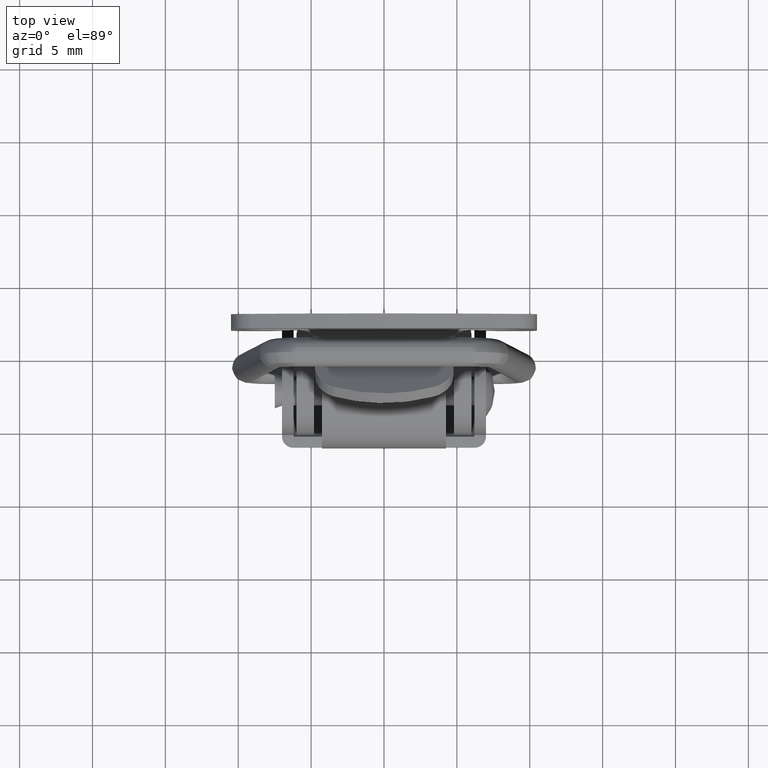
[diagram: clean part render]
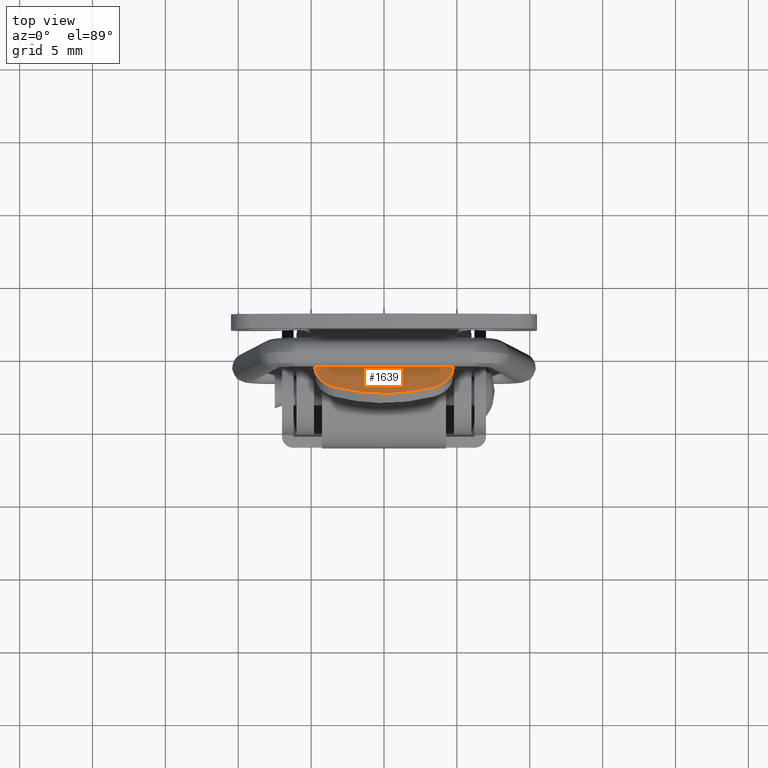
[diagram: same view with one face highlighted and labeled with its STEP entity id]
A machine part, top view. The second image highlights one B-rep face of the part: STEP entity #1639.
In plain terms, the highlighted face is a freeform B-spline surface patch.
Its self-contained STEP definition (entity closure, byte-faithful):
#428=CARTESIAN_POINT('',(-0.992000000000000,4.749810714312910,-0.626000000000000));
#429=VERTEX_POINT('',#428);
#468=CARTESIAN_POINT('',(-2.380710319638080,3.437499999998885,0.597208548069866));
#469=VERTEX_POINT('',#468);
#475=CARTESIAN_POINT('',(-0.992000000000000,4.749810714312910,-0.626000000000000));
#476=CARTESIAN_POINT('',(-2.025433819726798,4.730862212252832,0.284272692783338));
#477=CARTESIAN_POINT('',(-2.380710319638080,3.437499999998885,0.597208548069866));
#485=(BOUNDED_CURVE()B_SPLINE_CURVE(2,(#475,#476,#477),.UNSPECIFIED.,.F.,.U.)CURVE()GEOMETRIC_REPRESENTATION_ITEM()QUASI_UNIFORM_CURVE()RATIONAL_B_SPLINE_CURVE((1.0,0.823600895884987,1.0))REPRESENTATION_ITEM(''));
#486=EDGE_CURVE('',#429,#469,#485,.T.);
#505=CARTESIAN_POINT('',(-2.380710319638100,-3.437499999998690,0.597208548069886));
#506=VERTEX_POINT('',#505);
#507=CARTESIAN_POINT('',(-0.992000000000000,-4.749810714312750,-0.626000000000000));
#508=VERTEX_POINT('',#507);
#509=CARTESIAN_POINT('',(-2.380710319638100,-3.437499999998690,0.597208548069886));
#510=CARTESIAN_POINT('',(-2.025433819731185,-4.730862212244726,0.284272692787202));
#511=CARTESIAN_POINT('',(-0.992000000000000,-4.749810714312750,-0.626000000000000));
#519=(BOUNDED_CURVE()B_SPLINE_CURVE(2,(#509,#510,#511),.UNSPECIFIED.,.F.,.U.)CURVE()GEOMETRIC_REPRESENTATION_ITEM()QUASI_UNIFORM_CURVE()RATIONAL_B_SPLINE_CURVE((1.0,0.823600895886083,1.0))REPRESENTATION_ITEM(''));
#520=EDGE_CURVE('',#506,#508,#519,.T.);
#598=CARTESIAN_POINT('',(-2.380710319638080,3.437499999998885,0.597208548069866));
#599=CARTESIAN_POINT('',(-3.324964726388754,1.158240E-013,1.428929926930423));
#600=CARTESIAN_POINT('',(-2.380710319638108,-3.437499999998688,0.597208548069887));
#608=(BOUNDED_CURVE()B_SPLINE_CURVE(2,(#598,#599,#600),.UNSPECIFIED.,.F.,.U.)CURVE()GEOMETRIC_REPRESENTATION_ITEM()QUASI_UNIFORM_CURVE()RATIONAL_B_SPLINE_CURVE((1.0,0.939061200082339,1.0))REPRESENTATION_ITEM(''));
#609=EDGE_CURVE('',#469,#506,#608,.T.);
#978=CARTESIAN_POINT('',(-0.992000000000000,-4.749810714312750,-0.626000000000000));
#979=CARTESIAN_POINT('',(-0.992000000000000,4.749810714312910,-0.626000000000000));
#980=QUASI_UNIFORM_CURVE('',1,(#978,#979),.UNSPECIFIED.,.F.,.U.);
#981=EDGE_CURVE('',#508,#429,#980,.T.);
#1628=CARTESIAN_POINT('',(-2.930207731080665,-5.224316786260491,1.081218727376577));
#1629=CARTESIAN_POINT('',(-0.899792252415492,-5.224316786260491,-0.707218741913549));
#1630=CARTESIAN_POINT('',(-2.930207731080665,5.224317041060354,1.081218727376577));
#1631=CARTESIAN_POINT('',(-0.899792252415492,5.224317041060354,-0.707218741913549));
#1632=B_SPLINE_SURFACE_WITH_KNOTS('',1,1,((#1628,#1630),(#1629,#1631)),.UNSPECIFIED.,.F.,.F.,.U.,(2,2),(2,2),(0.0,2.705752316374135),(0.0,10.448633827320849),.UNSPECIFIED.);
#1633=ORIENTED_EDGE('',*,*,#609,.T.);
#1634=ORIENTED_EDGE('',*,*,#520,.T.);
#1635=ORIENTED_EDGE('',*,*,#981,.T.);
#1636=ORIENTED_EDGE('',*,*,#486,.T.);
#1637=EDGE_LOOP('',(#1633,#1634,#1635,#1636));
#1638=FACE_OUTER_BOUND('',#1637,.T.);
#1639=ADVANCED_FACE('',(#1638),#1632,.T.);